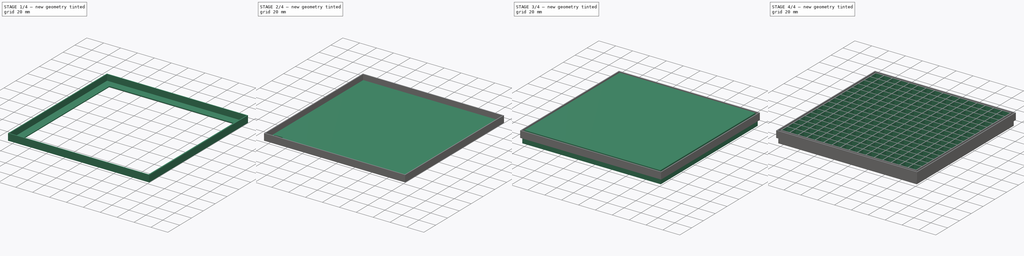
[diagram: build sequence overview — one tinted view per stage of 4, left to right]
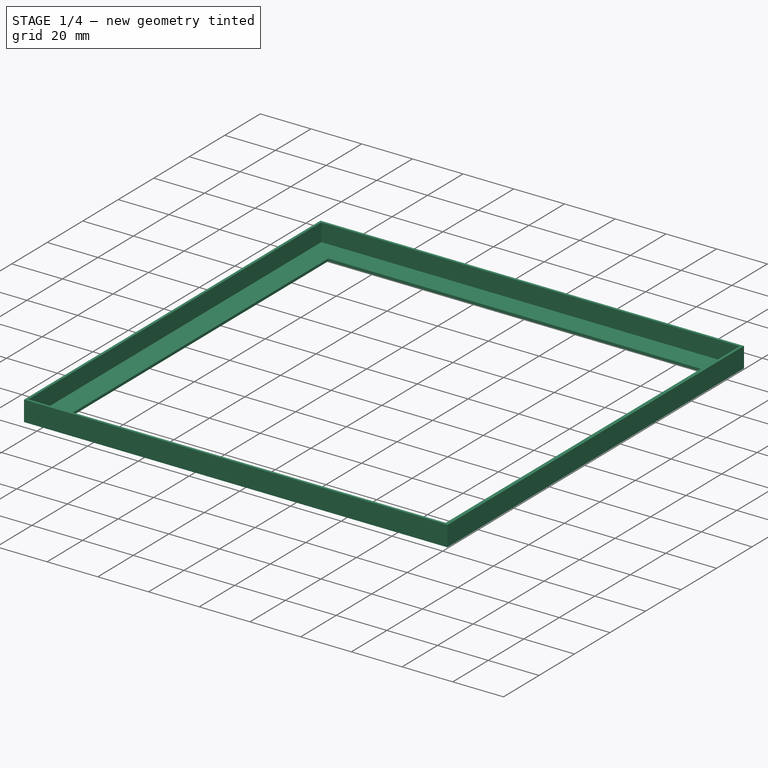
[diagram: stage 1 of 4 — iso view after this stage's code; geometry added in this stage tinted green]
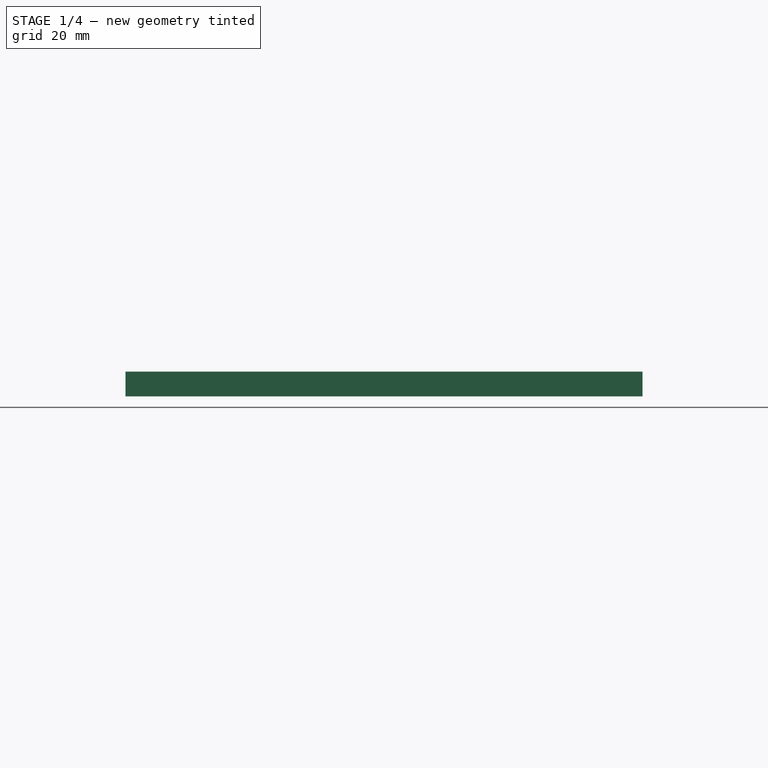
[diagram: stage 1 of 4 — front view after this stage's code; geometry added in this stage tinted green]
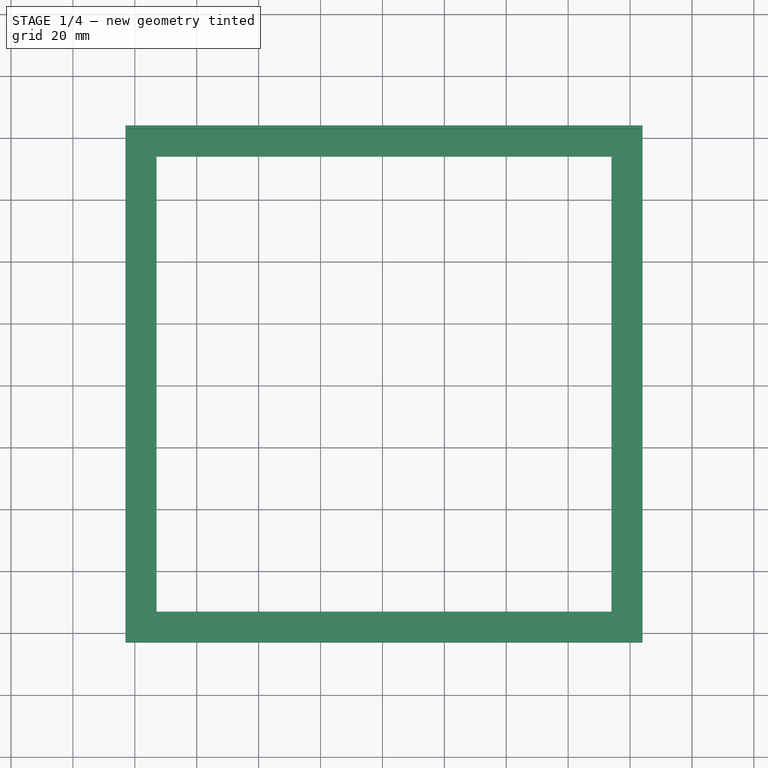
[diagram: stage 1 of 4 — top view after this stage's code; geometry added in this stage tinted green]
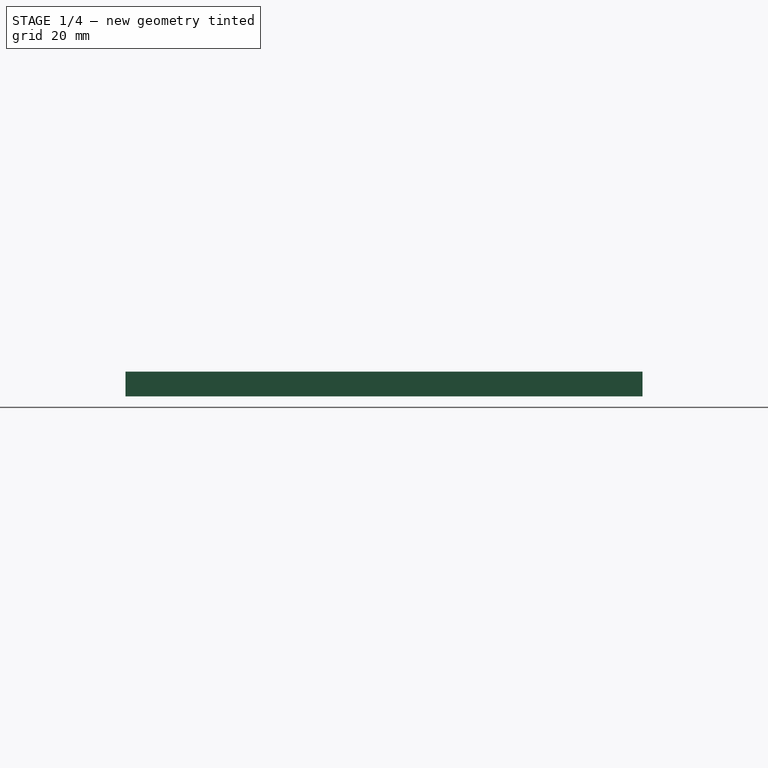
[diagram: stage 1 of 4 — right view after this stage's code; geometry added in this stage tinted green]
FCSTD DOCUMENT  (FreeCAD 1.0RUnknown)
Label: frame
License: All rights reserved
LicenseURL: https://en.wikipedia.org/wiki/All_rights_reserved
objects: Sketcher::SketchObject×7, PartDesign::Pad×5, PartDesign::LinearPattern×4, PartDesign::Body×3, PartDesign::Pocket×2, PartDesign::MultiTransform×2, Spreadsheet::Sheet×1
note: 50 computed .brp shape members not serialized (recipe doc carries the construction recipe); baked Part::Feature solids carry a one-line shape summary decoded from their .brp

FEATURE [PartDesign::Body] Body001  label="Top"
  AllowCompound = false
  Group = -> [Sketch002,Pad001,Sketch003,Pocket001,MultiTransform001,LinearPattern002,LinearPattern003,Sketch004,Pad002]
  Origin = -> Origin001
  Placement = pos=(0,0,8) rot=(0,0,1;0rad)
  Tip = -> Pad002
  expr: .Placement.Base.z = Spreadsheet.grid_thickness + 1 mm
FEATURE [Sketcher::SketchObject] Sketch005
  ArcFitTolerance = 1e-06
  AttachmentSupport = -> [XY_Plane002]
  FullyConstrained = true
  MakeInternals = false
  MapMode = 5
  expr: Constraints[15] = 2 mm + Spreadsheet.border_thickness * 6 - Spreadsheet.wall_thickness + Spreadsheet.cell_width * Spreadsheet.width
  expr: Constraints[16] = 2 mm + Spreadsheet.border_thickness * 6 - Spreadsheet.wall_thickness + Spreadsheet.cell_width * Spreadsheet.height
  expr: Constraints[17] = Spreadsheet.border_thickness * 2 + 1 mm
  sketch-geometry (13):
    g0: LineSegment StartX=-3 StartY=-3 StartZ=0 EndX=164 EndY=-3 EndZ=0
    g1: LineSegment StartX=164 StartY=-3 StartZ=0 EndX=164 EndY=164 EndZ=0
    g2: LineSegment StartX=164 StartY=164 StartZ=0 EndX=-3 EndY=164 EndZ=0
    g3: LineSegment StartX=-3 StartY=164 StartZ=0 EndX=-3 EndY=-3 EndZ=0
    g4: LineSegment [constr] StartX=0 StartY=0 StartZ=0 EndX=-3 EndY=0 EndZ=0
    g5: LineSegment [constr] StartX=0 StartY=0 StartZ=0 EndX=0 EndY=-3 EndZ=0
    g6: LineSegment StartX=154 StartY=154 StartZ=0 EndX=7 EndY=154 EndZ=0
    g7: LineSegment StartX=7 StartY=154 StartZ=0 EndX=7 EndY=7 EndZ=0
    g8: LineSegment StartX=7 StartY=7 StartZ=0 EndX=154 EndY=7 EndZ=0
    g9: LineSegment StartX=154 StartY=7 StartZ=0 EndX=154 EndY=154 EndZ=0
    g10: GeomPoint [constr] X=80.5 Y=80.5 Z=0
    g11: LineSegment [constr] StartX=7 StartY=7 StartZ=0 EndX=7 EndY=-3 EndZ=0
    g12: LineSegment [constr] StartX=7 StartY=7 StartZ=0 EndX=-3 EndY=7 EndZ=0
  constraints (36):
    c: Coincident(g0,g1)
    c: Coincident(g1,g2)
    c: Coincident(g2,g3)
    c: Coincident(g3,g0)
    c: Horizontal(g0)
    c: Horizontal(g2)
    c: Vertical(g1)
    c: Vertical(g3)
    c: Coincident(g4,g-1)
    c: PointOnObject(g4,g3)
    c: Horizontal(g4)
    c: Coincident(g5,g4)
    c: PointOnObject(g5,g0)
    c: Vertical(g5)
    c: Equal(g4,g5)
    c: DistanceX(g0,g0) = 167
    c: DistanceY(g3,g3) = 167
    c: Distance(g4,g4) = 3
    c: Coincident(g6,g7)
    c: Coincident(g7,g8)
    c: Coincident(g8,g9)
    c: Coincident(g9,g6)
    c: Horizontal(g6)
    c: Horizontal(g8)
    c: Vertical(g7)
    c: Vertical(g9)
    c: Symmetric(g8,g6,g10)
    c: Symmetric(g0,g1,g10)
    c: Coincident(g11,g7)
    c: PointOnObject(g11,g0)
    c: Vertical(g11)
    c: Coincident(g12,g7)
    c: PointOnObject(g12,g3)
    c: Horizontal(g12)
    c: Equal(g12,g11)
    c: Distance(g11,g11) = 10
FEATURE [PartDesign::Pad] Pad003
  Direction = (0,0,1)
  Length = 1
  Length2 = 10
  Profile = -> Sketch005
  ReferenceAxis = -> Sketch005 [N_Axis]
  Refine = true
  Reversed = true
  Suppressed = false
  Type = 0
  expr: Length = Spreadsheet.border_thickness
FEATURE [Sketcher::SketchObject] Sketch006
  ArcFitTolerance = 1e-06
  AttachmentSupport = -> [Pad003]
  ExternalGeometry = -> [Pad003]
  FullyConstrained = true
  MakeInternals = false
  MapMode = 5
  expr: Constraints[27] = Spreadsheet.border_thickness
  sketch-geometry (11):
    g0: LineSegment StartX=164 StartY=164 StartZ=0 EndX=-3 EndY=164 EndZ=0
    g1: LineSegment StartX=-3 StartY=164 StartZ=0 EndX=-3 EndY=-3 EndZ=0
    g2: LineSegment StartX=-3 StartY=-3 StartZ=0 EndX=164 EndY=-3 EndZ=0
    g3: LineSegment StartX=164 StartY=-3 StartZ=0 EndX=164 EndY=164 EndZ=0
    g4: LineSegment StartX=-2 StartY=-2 StartZ=0 EndX=163 EndY=-2 EndZ=0
    g5: LineSegment StartX=163 StartY=-2 StartZ=0 EndX=163 EndY=163 EndZ=0
    g6: LineSegment StartX=163 StartY=163 StartZ=0 EndX=-2 EndY=163 EndZ=0
    g7: LineSegment StartX=-2 StartY=163 StartZ=0 EndX=-2 EndY=-2 EndZ=0
    g8: GeomPoint [constr] X=80.5 Y=80.5 Z=0
    g9: LineSegment [constr] StartX=-2 StartY=-2 StartZ=0 EndX=-3 EndY=-2 EndZ=0
    g10: LineSegment [constr] StartX=-2 StartY=-2 StartZ=0 EndX=-2 EndY=-3 EndZ=0
  constraints (28):
    c: Coincident(g0,g1)
    c: Coincident(g1,g2)
    c: Coincident(g2,g3)
    c: Coincident(g3,g0)
    c: Horizontal(g0)
    c: Horizontal(g2)
    c: Vertical(g1)
    c: Vertical(g3)
    c: Coincident(g0,g-4)
    c: Coincident(g1,g-3)
    c: Coincident(g4,g5)
    c: Coincident(g5,g6)
    c: Coincident(g6,g7)
    c: Coincident(g7,g4)
    c: Horizontal(g4)
    c: Horizontal(g6)
    c: Vertical(g5)
    c: Vertical(g7)
    c: Symmetric(g6,g4,g8)
    c: Symmetric(g1,g0,g8)
    c: Coincident(g9,g4)
    c: PointOnObject(g9,g1)
    c: Horizontal(g9)
    c: Coincident(g10,g4)
    c: PointOnObject(g10,g2)
    c: Vertical(g10)
    c: Equal(g10,g9)
    c: Distance(g10,g10) = 1
FEATURE [PartDesign::Pad] Pad004
  BaseFeature = -> Pad003
  Direction = (0,0,1)
  Length = 7
  Length2 = 10
  Profile = -> Sketch006
  ReferenceAxis = -> Sketch006 [N_Axis]
  Refine = true
  Suppressed = false
  Type = 0
  expr: Length = Spreadsheet.grid_thickness
FEATURE [PartDesign::Body] Body002  label="Bottom"
  AllowCompound = false
  Group = -> [Sketch005,Pad003,Sketch006,Pad004]
  Origin = -> Origin002
  Tip = -> Pad004
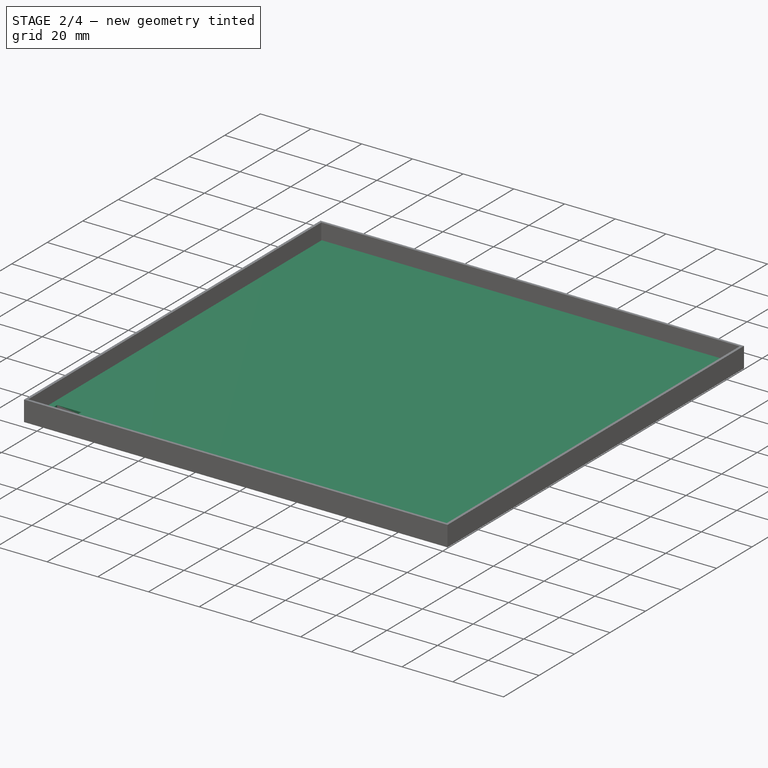
[diagram: stage 2 of 4 — iso view after this stage's code; geometry added in this stage tinted green]
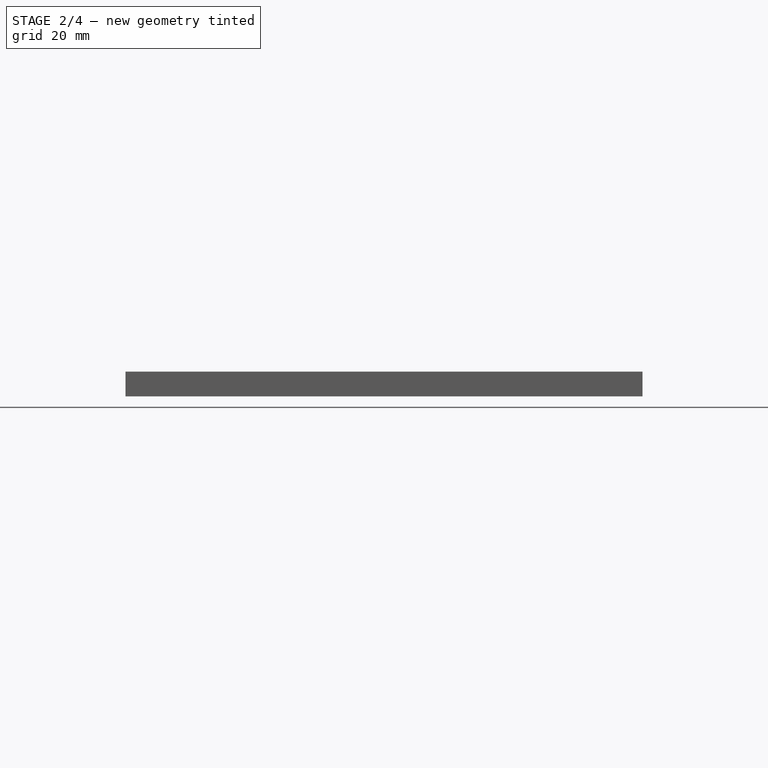
[diagram: stage 2 of 4 — front view after this stage's code; geometry added in this stage tinted green]
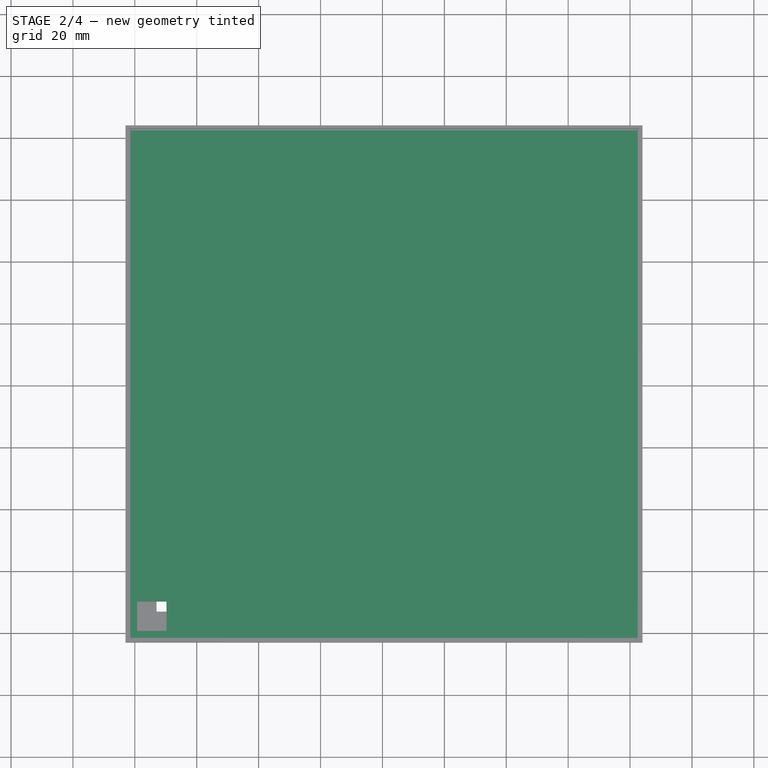
[diagram: stage 2 of 4 — top view after this stage's code; geometry added in this stage tinted green]
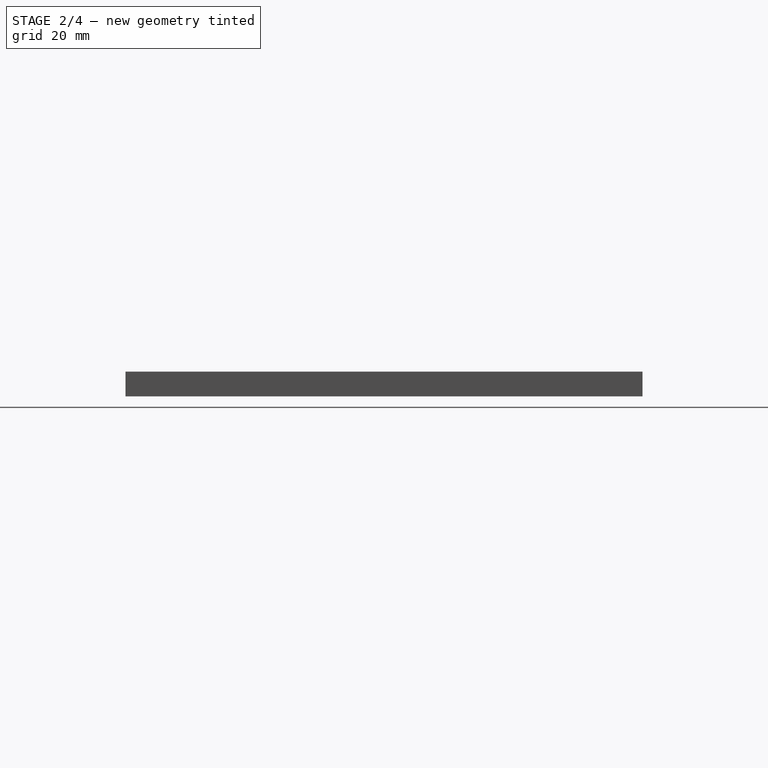
[diagram: stage 2 of 4 — right view after this stage's code; geometry added in this stage tinted green]
FEATURE [PartDesign::Body] Body  label="Grid"
  AllowCompound = false
  Group = -> [Sketch,Pad,Sketch001,Pocket,MultiTransform,LinearPattern,LinearPattern001]
  Origin = -> Origin
  Tip = -> MultiTransform
FEATURE [Sketcher::SketchObject] Sketch002
  ArcFitTolerance = 1e-06
  AttachmentSupport = -> [XY_Plane001]
  FullyConstrained = true
  MakeInternals = false
  MapMode = 5
  expr: Constraints[15] = 1 mm + Spreadsheet.border_thickness * 4 - Spreadsheet.wall_thickness + Spreadsheet.cell_width * Spreadsheet.width
  expr: Constraints[16] = 1 mm + Spreadsheet.border_thickness * 4 - Spreadsheet.wall_thickness + Spreadsheet.cell_width * Spreadsheet.height
  expr: Constraints[17] = Spreadsheet.border_thickness + 0.5 mm
  sketch-geometry (6):
    g0: LineSegment StartX=-1.5 StartY=-1.5 StartZ=0 EndX=162.5 EndY=-1.5 EndZ=0
    g1: LineSegment StartX=162.5 StartY=-1.5 StartZ=0 EndX=162.5 EndY=162.5 EndZ=0
    g2: LineSegment StartX=162.5 StartY=162.5 StartZ=0 EndX=-1.5 EndY=162.5 EndZ=0
    g3: LineSegment StartX=-1.5 StartY=162.5 StartZ=0 EndX=-1.5 EndY=-1.5 EndZ=0
    g4: LineSegment [constr] StartX=0 StartY=0 StartZ=0 EndX=-1.5 EndY=0 EndZ=0
    g5: LineSegment [constr] StartX=0 StartY=0 StartZ=0 EndX=0 EndY=-1.5 EndZ=0
  constraints (18):
    c: Coincident(g0,g1)
    c: Coincident(g1,g2)
    c: Coincident(g2,g3)
    c: Coincident(g3,g0)
    c: Horizontal(g0)
    c: Horizontal(g2)
    c: Vertical(g1)
    c: Vertical(g3)
    c: Coincident(g4,g-1)
    c: PointOnObject(g4,g3)
    c: Horizontal(g4)
    c: Coincident(g5,g4)
    c: PointOnObject(g5,g0)
    c: Vertical(g5)
    c: Equal(g4,g5)
    c: DistanceX(g0,g0) = 164
    c: DistanceY(g3,g3) = 164
    c: Distance(g4,g4) = 1.5
FEATURE [PartDesign::Pad] Pad001
  Direction = (0,0,1)
  Length = 1
  Length2 = 10
  Profile = -> Sketch002
  ReferenceAxis = -> Sketch002 [N_Axis]
  Refine = true
  Suppressed = false
  Type = 0
  expr: Length = Spreadsheet.border_thickness
FEATURE [Sketcher::SketchObject] Sketch003
  ArcFitTolerance = 1e-06
  AttachmentSupport = -> [Pad001]
  FullyConstrained = true
  MakeInternals = false
  MapMode = 5
  Placement = pos=(0,0,1) rot=(0,0,1;0rad)
  expr: Constraints[15] = Spreadsheet.border_thickness - Spreadsheet.top_thickness / 2
  expr: Constraints[17] = Spreadsheet.cell_width - Spreadsheet.top_thickness
  sketch-geometry (6):
    g0: LineSegment StartX=0.75 StartY=0.75 StartZ=0 EndX=10.25 EndY=0.75 EndZ=0
    g1: LineSegment StartX=10.25 StartY=0.75 StartZ=0 EndX=10.25 EndY=10.25 EndZ=0
    g2: LineSegment StartX=10.25 StartY=10.25 StartZ=0 EndX=0.75 EndY=10.25 EndZ=0
    g3: LineSegment StartX=0.75 StartY=10.25 StartZ=0 EndX=0.75 EndY=0.75 EndZ=0
    g4: LineSegment [constr] StartX=0.75 StartY=0.75 StartZ=0 EndX=0 EndY=0.75 EndZ=0
    g5: LineSegment [constr] StartX=0.75 StartY=0.75 StartZ=0 EndX=0.75 EndY=0 EndZ=0
  constraints (18):
    c: Coincident(g0,g1)
    c: Coincident(g1,g2)
    c: Coincident(g2,g3)
    c: Coincident(g3,g0)
    c: Horizontal(g0)
    c: Horizontal(g2)
    c: Vertical(g1)
    c: Vertical(g3)
    c: Coincident(g4,g0)
    c: PointOnObject(g4,g-2)
    c: Horizontal(g4)
    c: Coincident(g5,g0)
    c: PointOnObject(g5,g-1)
    c: Vertical(g5)
    c: Equal(g5,g4)
    c: Distance(g5,g5) = 0.75
    c: Equal(g3,g0)
    c: DistanceX(g0,g0) = 9.5
FEATURE [PartDesign::Pocket] Pocket001
  BaseFeature = -> Pad001
  Direction = (0,0,-1)
  Length = 5
  Length2 = 5
  Profile = -> Sketch003
  ReferenceAxis = -> Sketch003 [N_Axis]
  Refine = true
  Suppressed = false
  Type = 2
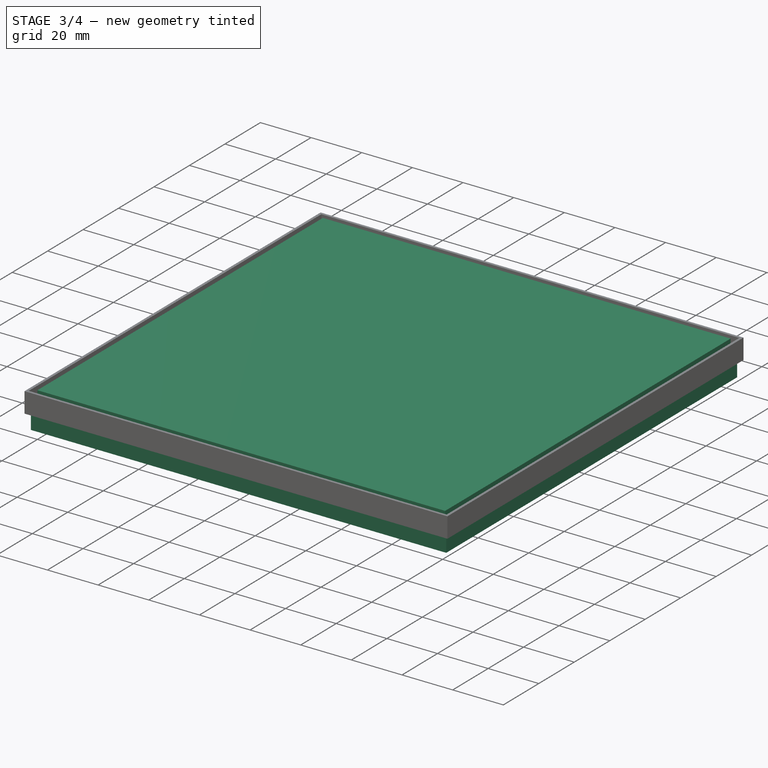
[diagram: stage 3 of 4 — iso view after this stage's code; geometry added in this stage tinted green]
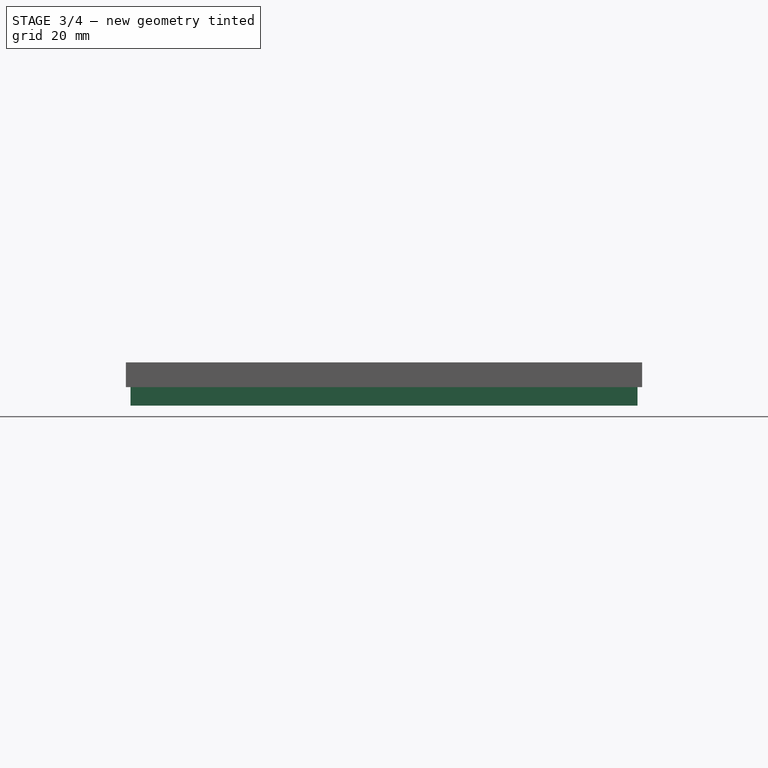
[diagram: stage 3 of 4 — front view after this stage's code; geometry added in this stage tinted green]
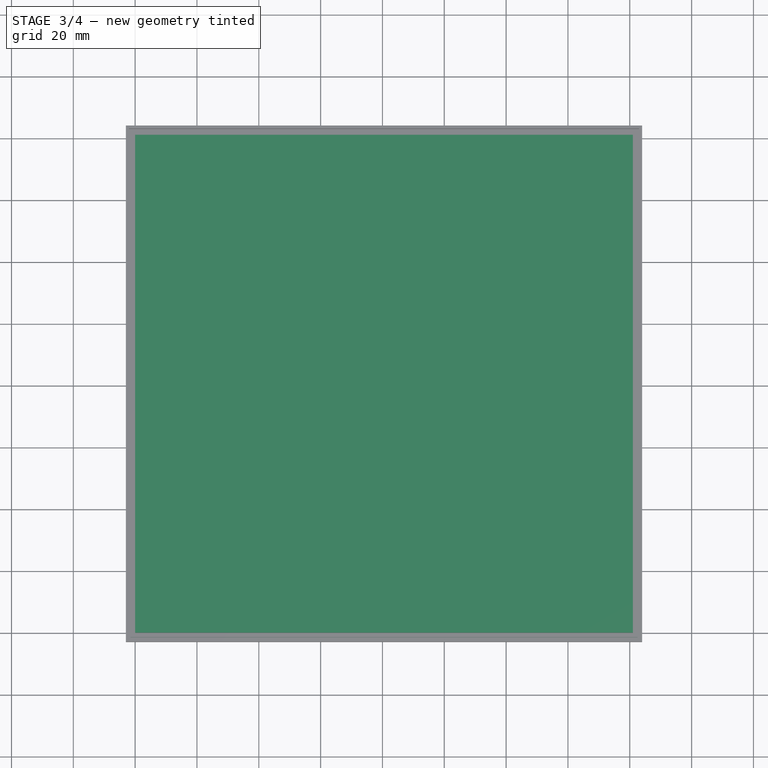
[diagram: stage 3 of 4 — top view after this stage's code; geometry added in this stage tinted green]
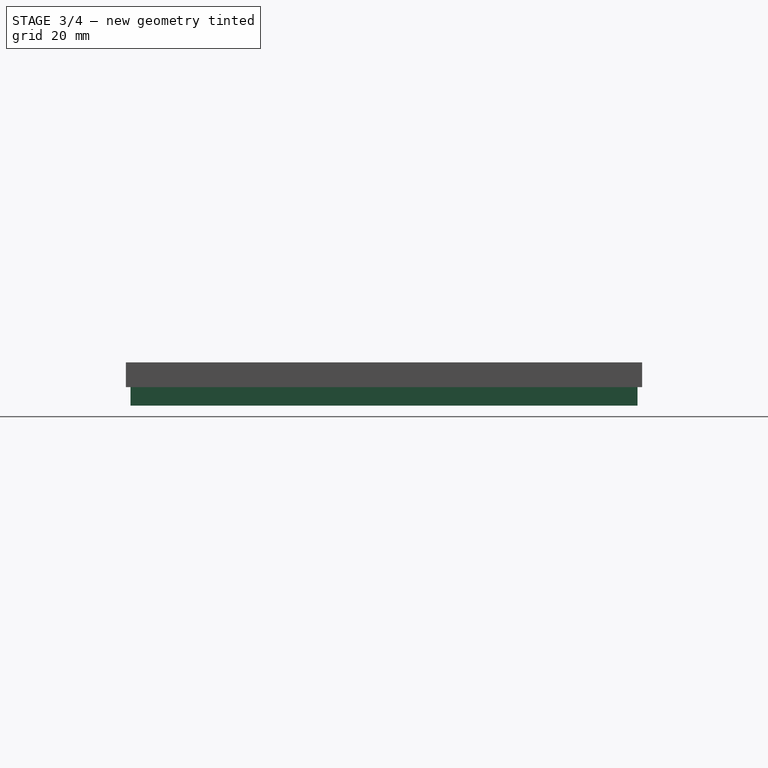
[diagram: stage 3 of 4 — right view after this stage's code; geometry added in this stage tinted green]
FEATURE [Sketcher::SketchObject] Sketch
  ArcFitTolerance = 1e-06
  AttachmentSupport = -> [XY_Plane]
  FullyConstrained = true
  MakeInternals = false
  MapMode = 5
  expr: Constraints[10] = Spreadsheet.border_thickness * 2 - Spreadsheet.wall_thickness + Spreadsheet.cell_width * Spreadsheet.height
  expr: Constraints[9] = Spreadsheet.border_thickness * 2 - Spreadsheet.wall_thickness + Spreadsheet.cell_width * Spreadsheet.width
  sketch-geometry (4):
    g0: LineSegment StartX=0 StartY=0 StartZ=0 EndX=161 EndY=0 EndZ=0
    g1: LineSegment StartX=161 StartY=0 StartZ=0 EndX=161 EndY=161 EndZ=0
    g2: LineSegment StartX=161 StartY=161 StartZ=0 EndX=0 EndY=161 EndZ=0
    g3: LineSegment StartX=0 StartY=161 StartZ=0 EndX=0 EndY=0 EndZ=0
  constraints (11):
    c: Coincident(g0,g1)
    c: Coincident(g1,g2)
    c: Coincident(g2,g3)
    c: Coincident(g3,g0)
    c: Horizontal(g0)
    c: Horizontal(g2)
    c: Vertical(g1)
    c: Vertical(g3)
    c: Coincident(g0,g-1)
    c: DistanceX(g0,g0) = 161
    c: DistanceY(g3,g3) = 161
FEATURE [Spreadsheet::Sheet] Spreadsheet
  cells = A2='Wall thickness; B2(wall_thickness)==1 mm; A3='Top thickness; B3(top_thickness)==0.5 mm; A4='Border thickness; B4(border_thickness)==1 mm; A5='Cell Width; B5(cell_width)==10 mm; A6='Width; B6(width)=16; A7='Height; B7(height)=16; A8='Grid Thickness; B8(grid_thickness)==7 mm
FEATURE [PartDesign::Pad] Pad
  Direction = (0,0,1)
  Length = 7
  Length2 = 10
  Profile = -> Sketch
  ReferenceAxis = -> Sketch [N_Axis]
  Refine = true
  Suppressed = false
  Type = 0
  expr: Length = Spreadsheet.grid_thickness
FEATURE [PartDesign::LinearPattern] LinearPattern002
  Direction = -> Sketch003 [H_Axis]
  Length = 150
  Mode = 1
  Occurrences = 16
  Offset = 10
  Refine = true
  Suppressed = false
  TransformMode = 0
  expr: Occurrences = Spreadsheet.width
  expr: Offset = Spreadsheet.cell_width
FEATURE [PartDesign::LinearPattern] LinearPattern003
  Direction = -> Sketch003 [V_Axis]
  Length = 150
  Mode = 1
  Occurrences = 16
  Offset = 10
  Refine = true
  Suppressed = false
  TransformMode = 0
  expr: Occurrences = Spreadsheet.height
  expr: Offset = Spreadsheet.cell_width
FEATURE [PartDesign::MultiTransform] MultiTransform001
  BaseFeature = -> Pocket001
  Originals = -> [Pocket001]
  Refine = true
  Suppressed = false
  TransformMode = 0
  Transformations = -> [LinearPattern002,LinearPattern003]
FEATURE [Sketcher::SketchObject] Sketch004
  ArcFitTolerance = 1e-06
  AttachmentSupport = -> [Pad001]
  ExternalGeometry = -> [Pad001]
  FullyConstrained = true
  MakeInternals = false
  MapMode = 5
  Placement = pos=(0,0,0) rot=(1,0,0;3.14159rad)
  sketch-geometry (11):
    g0: LineSegment StartX=162.5 StartY=-162.5 StartZ=0 EndX=162.5 EndY=1.5 EndZ=0
    g1: LineSegment StartX=162.5 StartY=1.5 StartZ=0 EndX=-1.5 EndY=1.5 EndZ=0
    g2: LineSegment StartX=-1.5 StartY=1.5 StartZ=0 EndX=-1.5 EndY=-162.5 EndZ=0
    g3: LineSegment StartX=-1.5 StartY=-162.5 StartZ=0 EndX=162.5 EndY=-162.5 EndZ=0
    g4: LineSegment StartX=-0.5 StartY=0.5 StartZ=0 EndX=-0.5 EndY=-161.5 EndZ=0
    g5: LineSegment StartX=-0.5 StartY=-161.5 StartZ=0 EndX=161.5 EndY=-161.5 EndZ=0
    g6: LineSegment StartX=161.5 StartY=-161.5 StartZ=0 EndX=161.5 EndY=0.5 EndZ=0
    g7: LineSegment StartX=161.5 StartY=0.5 StartZ=0 EndX=-0.5 EndY=0.5 EndZ=0
    g8: GeomPoint [constr] X=80.5 Y=-80.5 Z=0
    g9: LineSegment [constr] StartX=0 StartY=0 StartZ=0 EndX=-0.5 EndY=0 EndZ=0
    g10: LineSegment [constr] StartX=0 StartY=0 StartZ=0 EndX=0 EndY=0.5 EndZ=0
  constraints (28):
    c: Coincident(g0,g1)
    c: Coincident(g1,g2)
    c: Coincident(g2,g3)
    c: Coincident(g3,g0)
    c: Vertical(g0)
    c: Vertical(g2)
    c: Horizontal(g1)
    c: Horizontal(g3)
    c: Coincident(g0,g-4)
    c: Coincident(g1,g-3)
    c: Coincident(g4,g5)
    c: Coincident(g5,g6)
    c: Coincident(g6,g7)
    c: Coincident(g7,g4)
    c: Vertical(g4)
    c: Vertical(g6)
    c: Horizontal(g5)
    c: Horizontal(g7)
    c: Symmetric(g6,g4,g8)
    c: Symmetric(g0,g1,g8)
    c: Coincident(g9,g-1)
    c: PointOnObject(g9,g4)
    c: Horizontal(g9)
    c: Coincident(g10,g9)
    c: PointOnObject(g10,g7)
    c: Vertical(g10)
    c: Equal(g10,g9)
    c: Distance(g9,g9) = 0.5
FEATURE [PartDesign::Pad] Pad002
  BaseFeature = -> MultiTransform001
  Direction = (0,0,-1)
  Length = 7
  Length2 = 10
  Profile = -> Sketch004
  ReferenceAxis = -> Sketch004 [N_Axis]
  Refine = true
  Suppressed = false
  Type = 0
  expr: Length = Spreadsheet.grid_thickness
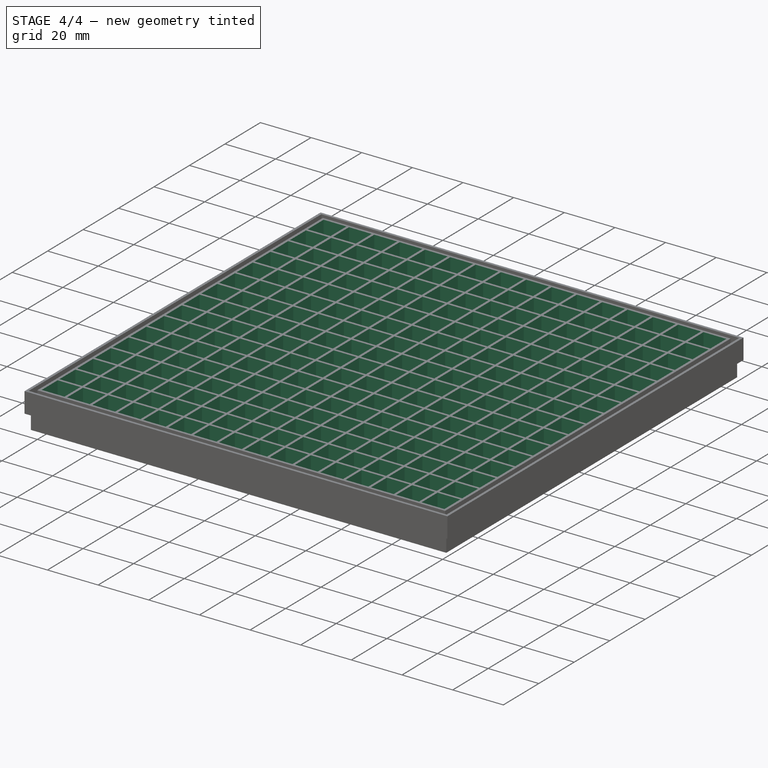
[diagram: stage 4 of 4 — iso view after this stage's code; geometry added in this stage tinted green]
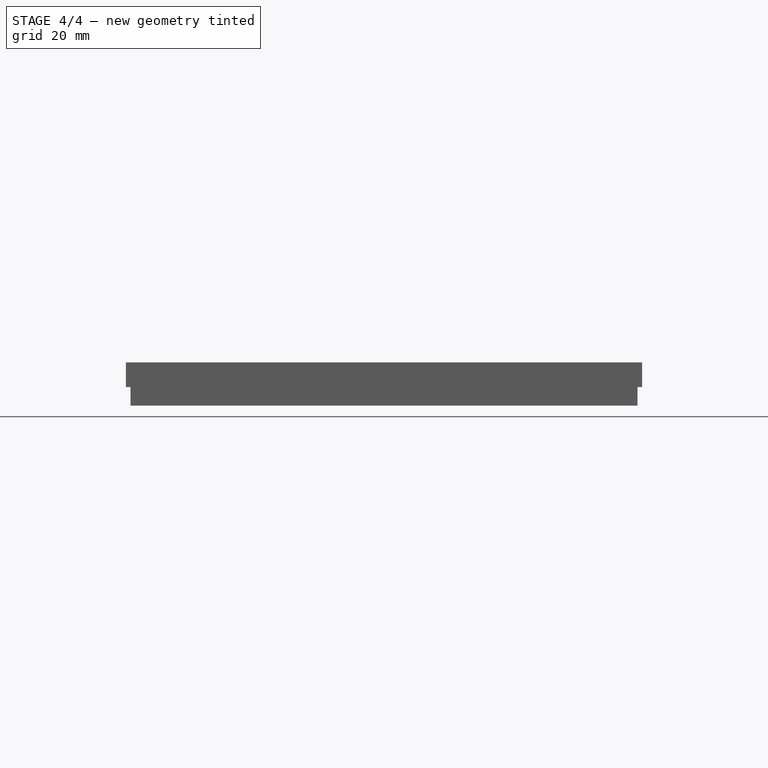
[diagram: stage 4 of 4 — front view after this stage's code; geometry added in this stage tinted green]
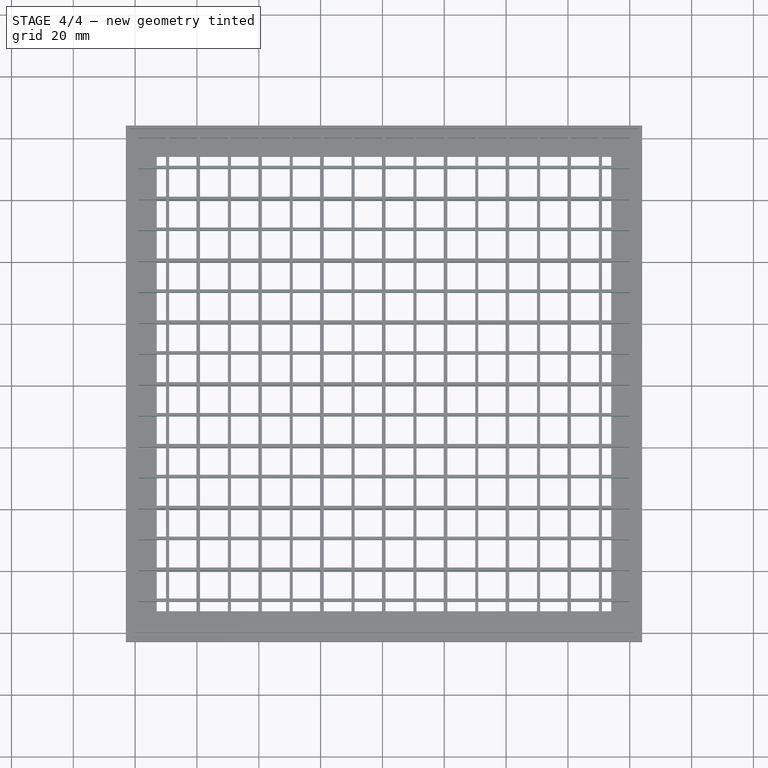
[diagram: stage 4 of 4 — top view after this stage's code; geometry added in this stage tinted green]
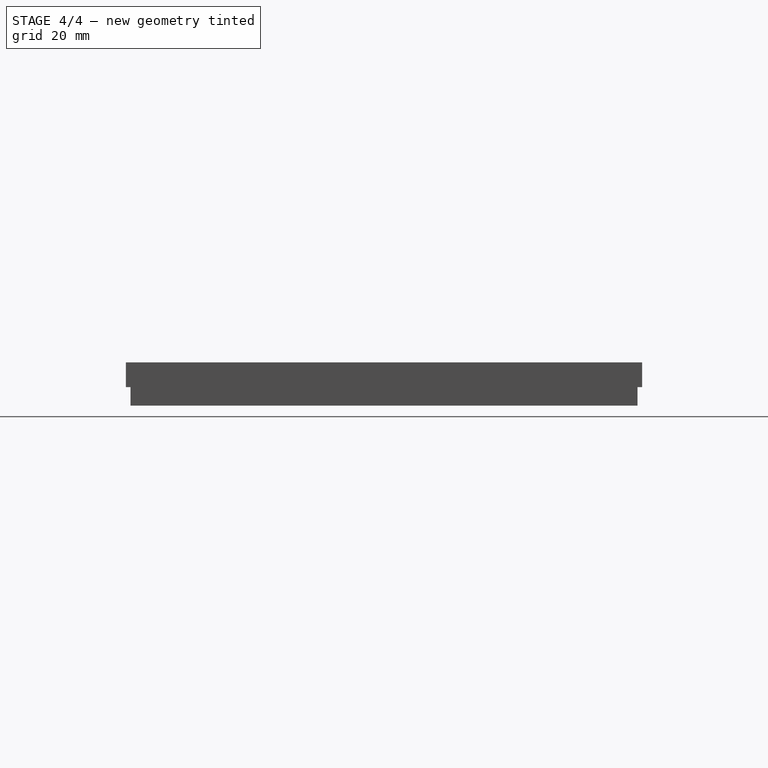
[diagram: stage 4 of 4 — right view after this stage's code; geometry added in this stage tinted green]
FEATURE [Sketcher::SketchObject] Sketch001
  ArcFitTolerance = 1e-06
  AttachmentSupport = -> [Pad]
  FullyConstrained = true
  MakeInternals = false
  MapMode = 5
  Placement = pos=(0,0,7) rot=(0,0,1;0rad)
  expr: Constraints[15] = Spreadsheet.border_thickness
  expr: Constraints[16] = Spreadsheet.cell_width - Spreadsheet.wall_thickness
  sketch-geometry (6):
    g0: LineSegment StartX=1 StartY=1 StartZ=0 EndX=10 EndY=1 EndZ=0
    g1: LineSegment StartX=10 StartY=1 StartZ=0 EndX=10 EndY=10 EndZ=0
    g2: LineSegment StartX=10 StartY=10 StartZ=0 EndX=1 EndY=10 EndZ=0
    g3: LineSegment StartX=1 StartY=10 StartZ=0 EndX=1 EndY=1 EndZ=0
    g4: LineSegment [constr] StartX=1 StartY=1 StartZ=0 EndX=1 EndY=0 EndZ=0
    g5: LineSegment [constr] StartX=1 StartY=1 StartZ=0 EndX=0 EndY=1 EndZ=0
  constraints (18):
    c: Coincident(g0,g1)
    c: Coincident(g1,g2)
    c: Coincident(g2,g3)
    c: Coincident(g3,g0)
    c: Horizontal(g0)
    c: Horizontal(g2)
    c: Vertical(g1)
    c: Vertical(g3)
    c: Coincident(g4,g0)
    c: PointOnObject(g4,g-1)
    c: Vertical(g4)
    c: Coincident(g5,g0)
    c: PointOnObject(g5,g-2)
    c: Horizontal(g5)
    c: Equal(g5,g4)
    c: Distance(g4,g4) = 1
    c: DistanceX(g0,g0) = 9
    c: Equal(g3,g0)
FEATURE [PartDesign::Pocket] Pocket
  BaseFeature = -> Pad
  Direction = (0,0,-1)
  Length = 5
  Length2 = 5
  Profile = -> Sketch001
  ReferenceAxis = -> Sketch001 [N_Axis]
  Refine = true
  Suppressed = false
  Type = 2
FEATURE [PartDesign::LinearPattern] LinearPattern
  Direction = -> Sketch001 [H_Axis]
  Length = 150
  Mode = 1
  Occurrences = 16
  Offset = 10
  Refine = true
  Suppressed = false
  TransformMode = 0
  expr: Occurrences = Spreadsheet.width
  expr: Offset = Spreadsheet.cell_width
FEATURE [PartDesign::LinearPattern] LinearPattern001
  Direction = -> Sketch001 [V_Axis]
  Length = 100
  Mode = 1
  Occurrences = 16
  Offset = 10
  Refine = true
  Suppressed = false
  TransformMode = 0
  expr: Length = 100 mm
  expr: Occurrences = Spreadsheet.height
  expr: Offset = Spreadsheet.cell_width
FEATURE [PartDesign::MultiTransform] MultiTransform
  BaseFeature = -> Pocket
  Originals = -> [Pocket]
  Refine = true
  Suppressed = false
  TransformMode = 0
  Transformations = -> [LinearPattern,LinearPattern001]
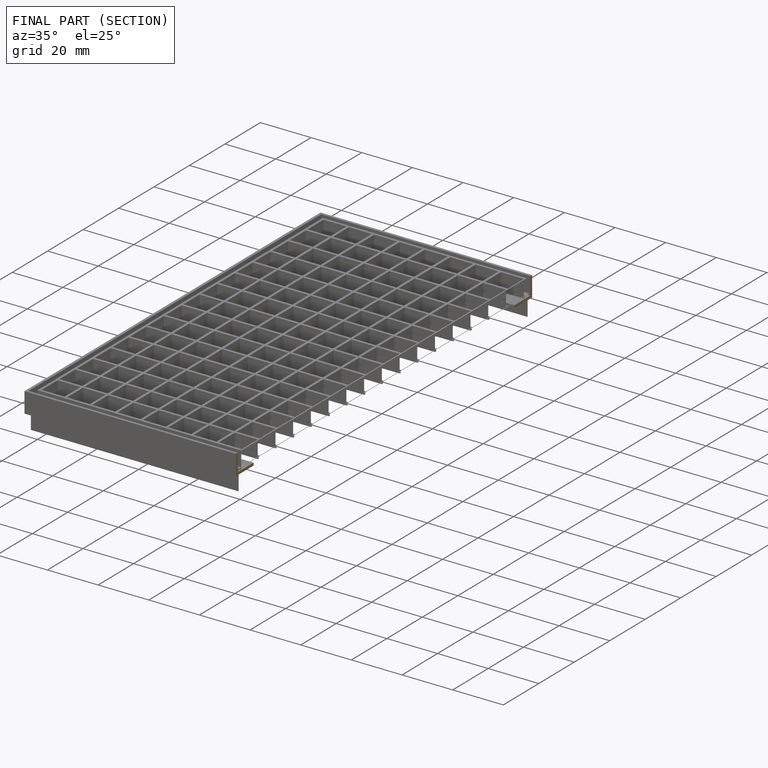
[diagram: finished part — half-section view (interior)]
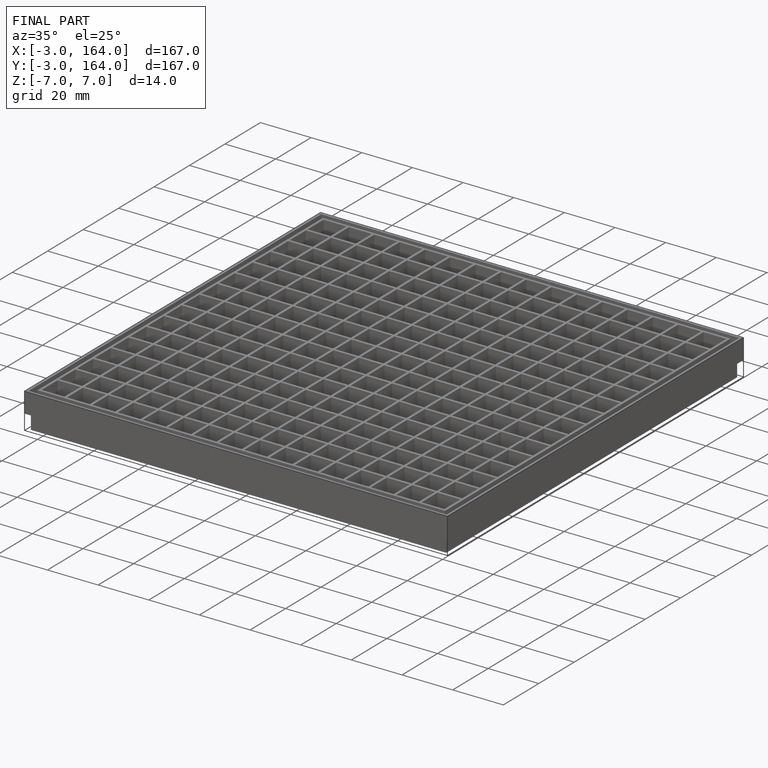
[diagram: finished part — iso view with bounding-box wireframe]
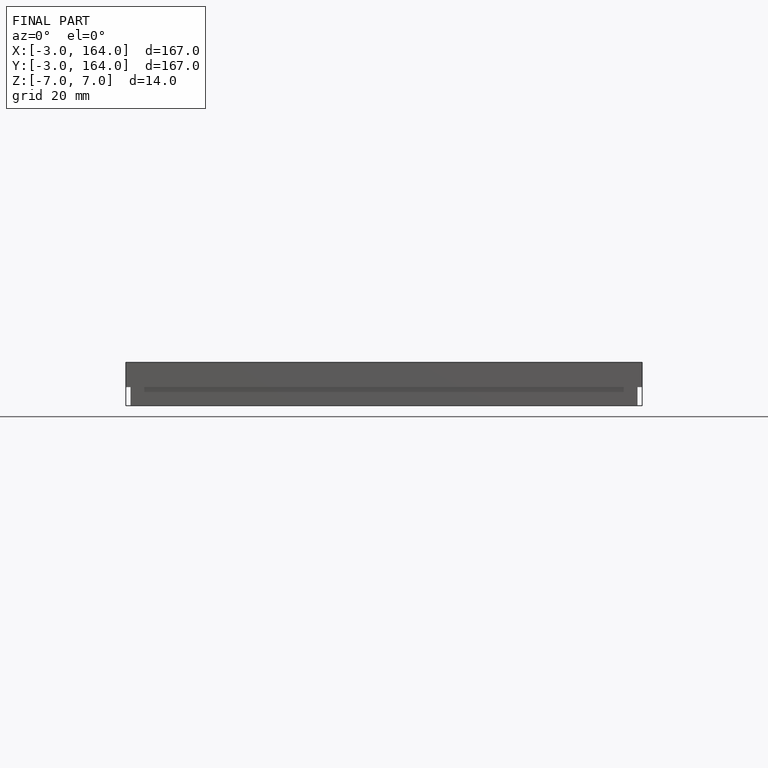
[diagram: finished part — front view with bounding-box wireframe]
